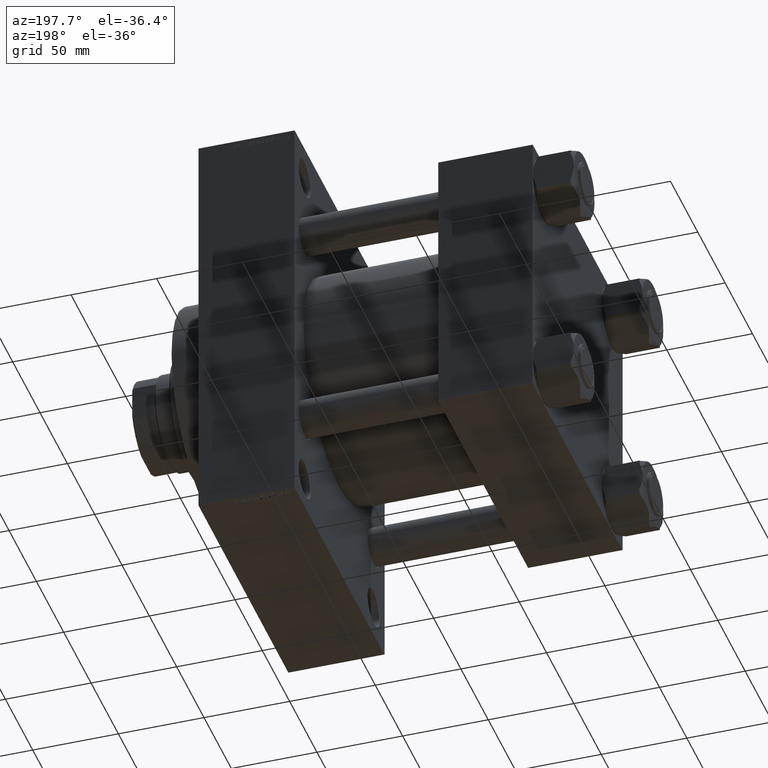
[diagram: clean part render]
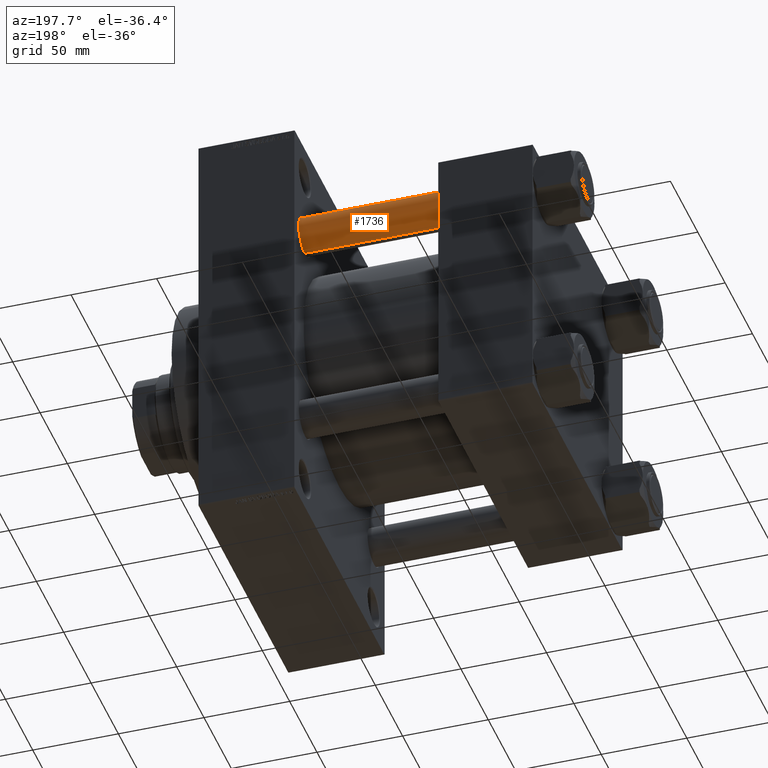
[diagram: same view with one face highlighted and labeled with its STEP entity id]
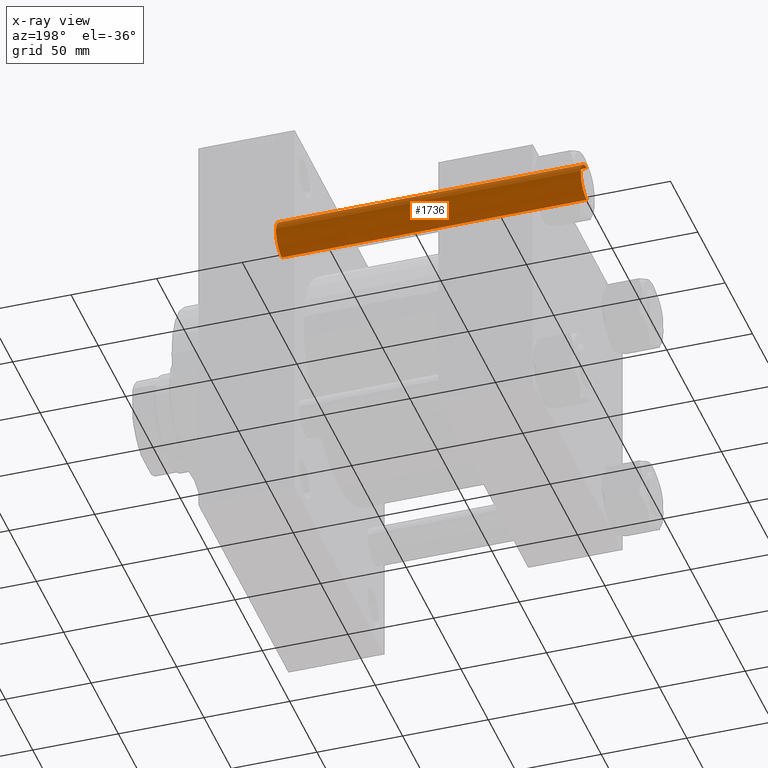
[diagram: x-ray of the same camera — body ghosted, the highlighted face saturated]
A machine part, auxiliary view. The second image highlights one B-rep face of the part: STEP entity #1736.
The next image is the same camera in x-ray: the body ghosted, the highlighted face saturated — about 0% of this face is hidden behind the body in this view.
In plain terms, the highlighted cylindrical surface (edge-blend (fillet) strip) has radius 11 mm, axis along (1, -0, -0).
Its self-contained STEP definition (entity closure, byte-faithful):
#1736 = ADVANCED_FACE ( 'NONE', ( #4586 ), #44615, .T. ) ;
#4586 = FACE_OUTER_BOUND ( 'NONE', #47509, .T. ) ;
#6032 = ORIENTED_EDGE ( 'NONE', *, *, #39517, .T. ) ;
#6513 = VERTEX_POINT ( 'NONE', #31723 ) ;
#6838 = VECTOR ( 'NONE', #42385, 1000.000000000000000 ) ;
#8511 = ORIENTED_EDGE ( 'NONE', *, *, #16439, .F. ) ;
#9456 = CARTESIAN_POINT ( 'NONE',  ( 0.000000000000000000, 0.000000000000000000, 0.5000000000001392220 ) ) ;
#9709 = CARTESIAN_POINT ( 'NONE',  ( -11.00000000000000000, 0.000000000000000000, 179.0000000000000000 ) ) ;
#9943 = DIRECTION ( 'NONE',  ( 1.000000000000000000, 0.000000000000000000, 0.000000000000000000 ) ) ;
#11593 = DIRECTION ( 'NONE',  ( -0.000000000000000000, -0.000000000000000000, -1.000000000000000000 ) ) ;
#11629 = LINE ( 'NONE', #33553, #6838 ) ;
#13807 = LINE ( 'NONE', #9709, #33562 ) ;
#16439 = EDGE_CURVE ( 'NONE', #6513, #38801, #13807, .T. ) ;
#18061 = ORIENTED_EDGE ( 'NONE', *, *, #36986, .T. ) ;
#19957 = VERTEX_POINT ( 'NONE', #41623 ) ;
#20542 = DIRECTION ( 'NONE',  ( 1.000000000000000000, 0.000000000000000000, 0.000000000000000000 ) ) ;
#21173 = AXIS2_PLACEMENT_3D ( 'NONE', #9456, #46567, #9943 ) ;
#22128 = AXIS2_PLACEMENT_3D ( 'NONE', #38866, #35730, #20542 ) ;
#22578 = CARTESIAN_POINT ( 'NONE',  ( -11.00000000000000000, 0.000000000000000000, 0.5000000000001392220 ) ) ;
#26933 = CARTESIAN_POINT ( 'NONE',  ( 11.00000000000000000, 1.347111479062088207E-15, 0.5000000000001392220 ) ) ;
#31723 = CARTESIAN_POINT ( 'NONE',  ( -11.00000000000000000, 0.000000000000000000, 178.5000000000000853 ) ) ;
#31859 = EDGE_CURVE ( 'NONE', #41541, #38801, #42751, .T. ) ;
#33553 = CARTESIAN_POINT ( 'NONE',  ( 11.00000000000000000, 1.347111479062088207E-15, 179.0000000000000000 ) ) ;
#33562 = VECTOR ( 'NONE', #43224, 1000.000000000000000 ) ;
#33765 = CARTESIAN_POINT ( 'NONE',  ( 0.000000000000000000, 0.000000000000000000, 179.0000000000000000 ) ) ;
#35730 = DIRECTION ( 'NONE',  ( 0.000000000000000000, 0.000000000000000000, -1.000000000000000000 ) ) ;
#36986 = EDGE_CURVE ( 'NONE', #6513, #19957, #43682, .T. ) ;
#37151 = DIRECTION ( 'NONE',  ( -1.000000000000000000, 0.000000000000000000, 0.000000000000000000 ) ) ;
#38499 = ORIENTED_EDGE ( 'NONE', *, *, #31859, .T. ) ;
#38801 = VERTEX_POINT ( 'NONE', #22578 ) ;
#38866 = CARTESIAN_POINT ( 'NONE',  ( 0.000000000000000000, 0.000000000000000000, 178.5000000000000853 ) ) ;
#39517 = EDGE_CURVE ( 'NONE', #19957, #41541, #11629, .T. ) ;
#41541 = VERTEX_POINT ( 'NONE', #26933 ) ;
#41623 = CARTESIAN_POINT ( 'NONE',  ( 11.00000000000000000, 1.347111479062088207E-15, 178.5000000000000853 ) ) ;
#42385 = DIRECTION ( 'NONE',  ( -0.000000000000000000, -0.000000000000000000, -1.000000000000000000 ) ) ;
#42751 = CIRCLE ( 'NONE', #21173, 11.00000000000000000 ) ;
#43224 = DIRECTION ( 'NONE',  ( -0.000000000000000000, -0.000000000000000000, -1.000000000000000000 ) ) ;
#43682 = CIRCLE ( 'NONE', #22128, 11.00000000000000000 ) ;
#44249 = AXIS2_PLACEMENT_3D ( 'NONE', #33765, #11593, #37151 ) ;
#44615 = CYLINDRICAL_SURFACE ( 'NONE', #44249, 11.00000000000000000 ) ;
#46567 = DIRECTION ( 'NONE',  ( -0.000000000000000000, -0.000000000000000000, 1.000000000000000000 ) ) ;
#47509 = EDGE_LOOP ( 'NONE', ( #18061, #6032, #38499, #8511 ) ) ;